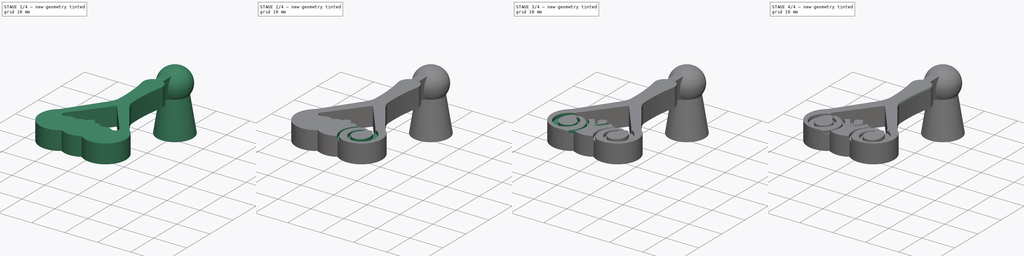
[diagram: build sequence overview — one tinted view per stage of 4, left to right]
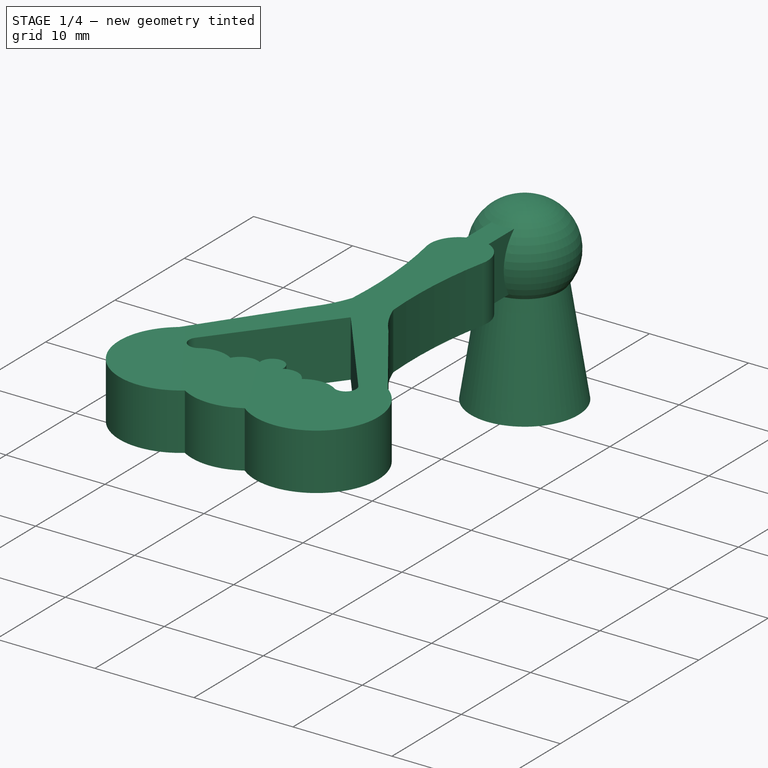
[diagram: stage 1 of 4 — iso view after this stage's code; geometry added in this stage tinted green]
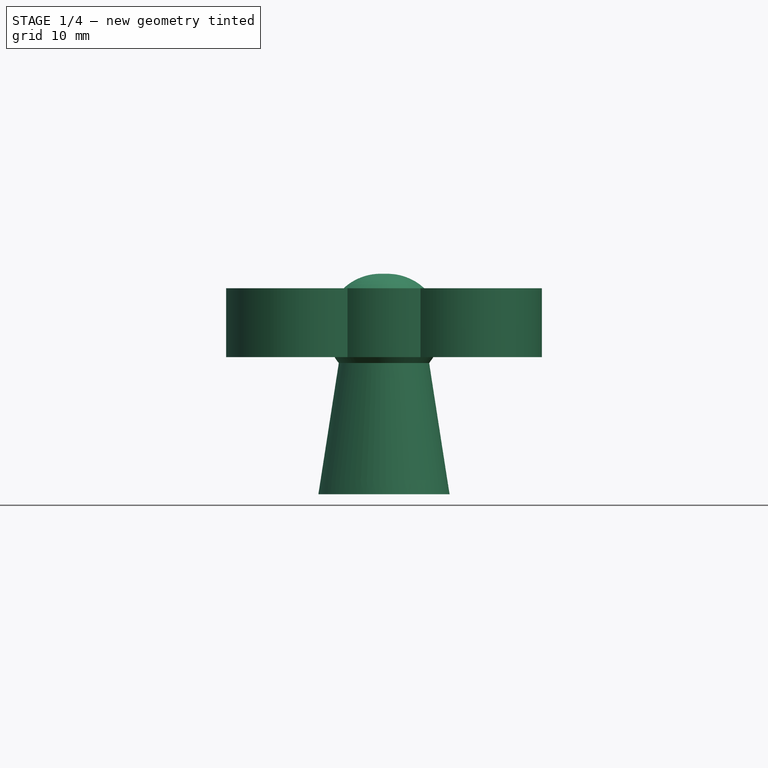
[diagram: stage 1 of 4 — front view after this stage's code; geometry added in this stage tinted green]
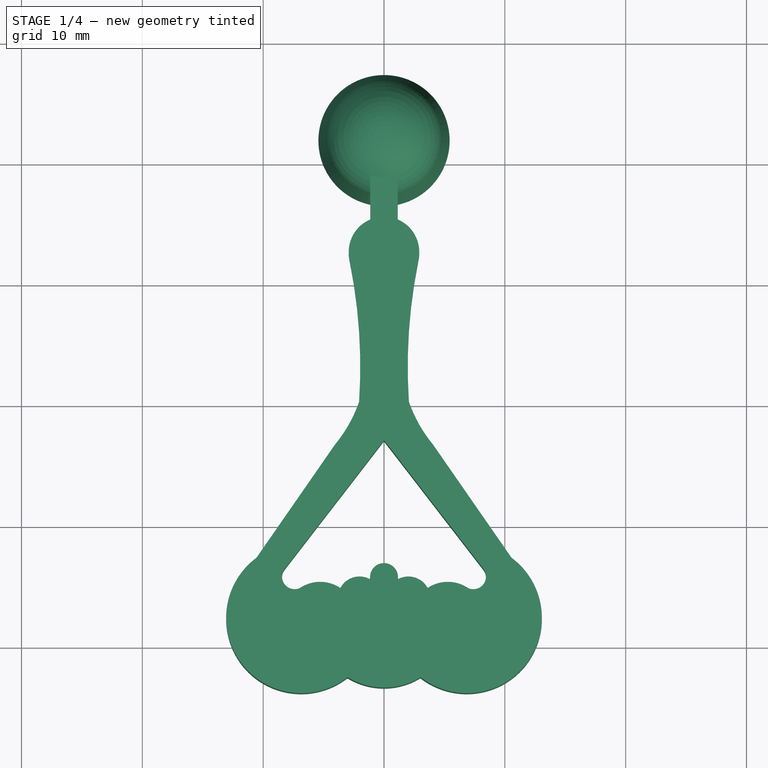
[diagram: stage 1 of 4 — top view after this stage's code; geometry added in this stage tinted green]
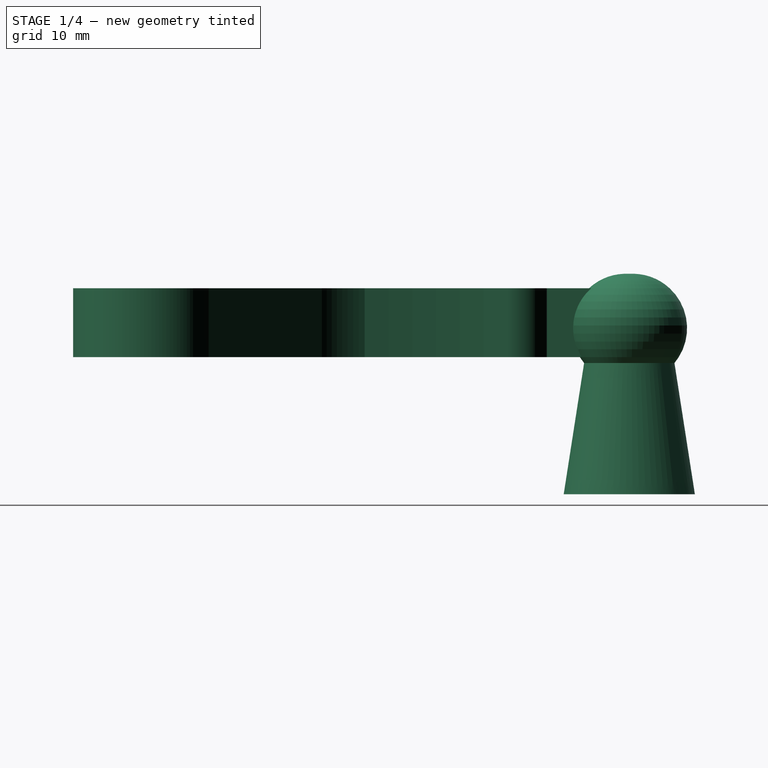
[diagram: stage 1 of 4 — right view after this stage's code; geometry added in this stage tinted green]
FCSTD DOCUMENT  (FreeCAD 1.1R20260325 (Git shallow))
Label: msf076
License: All rights reserved
LicenseURL: https://en.wikipedia.org/wiki/All_rights_reserved
objects: Sketcher::SketchObject×6, PartDesign::Pocket×3, PartDesign::Fillet×3, App::LinkGroup×2, App::Point×2, PartDesign::Pad×1, PartDesign::Revolution×1, PartDesign::Mirrored×1, PartDesign::MultiTransform×1, PartDesign::Body×1, App::Part×1
note: 41 computed .brp shape members not serialized (recipe doc carries the construction recipe); baked Part::Feature solids carry a one-line shape summary decoded from their .brp

FEATURE [Sketcher::SketchObject] Sketch
  ArcFitTolerance = 0
  ExternalTypes = [0]
  FullyConstrained = true
  MakeInternals = false
  MapMode = 5
  _ExternalGeoVersion = 0
  sketch-geometry (23):
    g0: ArcOfCircle CenterX=0 CenterY=-7.50755 CenterZ=0 NormalX=0 NormalY=0 NormalZ=1 AngleXU=0 Radius=2.91933 StartAngle=6.06481 EndAngle=7.45281
    g1: ArcOfCircle CenterX=46.2374 CenterY=-16.9612 CenterZ=0 NormalX=0 NormalY=0 NormalZ=1 AngleXU=0 Radius=44.275 StartAngle=2.94101 EndAngle=3.20802
    g2: ArcOfCircle CenterX=12.8513 CenterY=-16.1631 CenterZ=0 NormalX=0 NormalY=0 NormalZ=1 AngleXU=0 Radius=11.42 StartAngle=3.47496 EndAngle=3.83247
    g3: LineSegment StartX=4.05 StartY=-23.44 StartZ=0 EndX=10.5485 EndY=-32.81 EndZ=0
    g4: ArcOfCircle CenterX=6.85 CenterY=-37.81 CenterZ=0 NormalX=0 NormalY=0 NormalZ=1 AngleXU=0 Radius=6.21924 StartAngle=4.04895 EndAngle=7.21711
    g5: LineSegment StartX=1.14 StartY=-4.82 StartZ=0 EndX=1.14 EndY=2 EndZ=0
    g6: LineSegment StartX=1.14 StartY=2 StartZ=0 EndX=-1.14 EndY=2 EndZ=0
    g7: LineSegment StartX=0 StartY=-23.1 StartZ=0 EndX=8.21 EndY=-33.73 EndZ=0
    g8: ArcOfCircle CenterX=7.39702 CenterY=-34.38 CenterZ=0 NormalX=0 NormalY=0 NormalZ=1 AngleXU=0 Radius=1.04088 StartAngle=4.26849 EndAngle=6.95764
    g9: ArcOfCircle CenterX=5.28 CenterY=-37.81 CenterZ=0 NormalX=0 NormalY=0 NormalZ=1 AngleXU=0 Radius=2.99817 StartAngle=0.980019 EndAngle=2.16157
    g10: ArcOfCircle CenterX=2.02229 CenterY=-36.17 CenterZ=0 NormalX=0 NormalY=0 NormalZ=1 AngleXU=0 Radius=1.80093 StartAngle=0.491535 EndAngle=2.08278
    g11: ArcOfCircle CenterX=0 CenterY=-34.4145 CenterZ=0 NormalX=0 NormalY=0 NormalZ=1 AngleXU=0 Radius=1.155 StartAngle=6.12185 EndAngle=9.58612
    g12: ArcOfCircle CenterX=-2.02229 CenterY=-36.17 CenterZ=0 NormalX=0 NormalY=0 NormalZ=1 AngleXU=0 Radius=1.80093 StartAngle=1.05881 EndAngle=2.65006
    g13: ArcOfCircle CenterX=-5.28 CenterY=-37.81 CenterZ=0 NormalX=0 NormalY=0 NormalZ=1 AngleXU=0 Radius=2.99817 StartAngle=0.980019 EndAngle=2.16157
    g14: ArcOfCircle CenterX=-7.39702 CenterY=-34.38 CenterZ=0 NormalX=0 NormalY=0 NormalZ=1 AngleXU=0 Radius=1.04088 StartAngle=2.46714 EndAngle=5.15629
    g15: LineSegment StartX=-8.21 StartY=-33.73 StartZ=0 EndX=0 EndY=-23.1 EndZ=0
    g16: LineSegment StartX=-1.14 StartY=2 StartZ=0 EndX=-1.14 EndY=-4.82 EndZ=0
    g17: ArcOfCircle CenterX=0 CenterY=-7.50755 CenterZ=0 NormalX=0 NormalY=0 NormalZ=1 AngleXU=0 Radius=2.91933 StartAngle=1.97197 EndAngle=3.35997
    g18: ArcOfCircle CenterX=-12.8513 CenterY=-16.1631 CenterZ=0 NormalX=0 NormalY=0 NormalZ=1 AngleXU=0 Radius=11.42 StartAngle=5.59231 EndAngle=5.94982
    g19: LineSegment StartX=-4.05 StartY=-23.44 StartZ=0 EndX=-10.5485 EndY=-32.81 EndZ=0
    g20: ArcOfCircle CenterX=-6.85 CenterY=-37.81 CenterZ=0 NormalX=0 NormalY=0 NormalZ=1 AngleXU=0 Radius=6.21924 StartAngle=2.20767 EndAngle=5.37583
    g21: ArcOfCircle CenterX=1.1e-15 CenterY=-37.81 CenterZ=0 NormalX=0 NormalY=0 NormalZ=1 AngleXU=0 Radius=5.7559 StartAngle=4.16005 EndAngle=5.26473
    g22: ArcOfCircle CenterX=-46.2374 CenterY=-16.9612 CenterZ=0 NormalX=0 NormalY=0 NormalZ=1 AngleXU=0 Radius=44.275 StartAngle=6.21676 EndAngle=6.48376
  constraints (74):
    c: Coincident(g1,g0)
    c: Coincident(g2,g1)
    c: Coincident(g3,g2)
    c: Coincident(g4,g3)
    c: Coincident(g5,g0)
    c: Vertical(g5)
    c: Coincident(g6,g5)
    c: PointOnObject(g7,g-2)
    c: Coincident(g8,g7)
    c: Coincident(g9,g8)
    c: Coincident(g10,g9)
    c: Coincident(g11,g10)
    c: Coincident(g12,g11)
    c: Coincident(g13,g12)
    c: Coincident(g14,g13)
    c: Coincident(g15,g14)
    c: Coincident(g15,g7)
    c: Coincident(g16,g6)
    c: Vertical(g16)
    c: Coincident(g17,g16)
    c: Coincident(g19,g18)
    c: Coincident(g20,g19)
    c: Coincident(g21,g20)
    c: Coincident(g21,g4)
    c: Symmetric(g4,g20,g-2)
    c: Horizontal(g20,g13)
    c: Horizontal(g13,g21)
    c: Symmetric(g4,g20,g-2)
    c: Symmetric(g9,g13,g-2)
    c: Symmetric(g12,g10,g-2)
    c: Symmetric(g10,g11,g-2)
    c: Symmetric(g13,g8,g-2)
    c: Symmetric(g8,g14,g-2)
    c: Horizontal(g14,g7)
    c: Horizontal(g19,g3)
    c: Symmetric(g1,g18,g-2)
    c: Symmetric(g2,g18,g-2)
    c: PointOnObject(g17,g-2)
    c: Coincident(g0,g17)
    c: Horizontal(g0,g16)
    c: Horizontal(g0,g17)
    c: Symmetric(g5,g6,g-2)
    c: DistanceY(g5,g5) = 6.82
    c: DistanceY(g-1,g5) = 2
    c: DistanceY(g0,g-1) = 8.14
    c: DistanceY(g1,g-1) = 19.9
    c: DistanceY(g2,g-1) = 23.44
    c: DistanceY(g3,g-1) = 32.81
    c: DistanceY(g4,g-1) = 42.71
    c: DistanceY(g20,g-1) = 37.81
    c: DistanceY(g12,g-1) = 36.17
    c: DistanceY(g11,g-1) = 34.6
    c: Horizontal(g12,g13)
    c: DistanceY(g13,g14) = 0.94
    c: DistanceY(g14,g14) = 0.65
    c: DistanceY(g14,g19) = 0.92
    c: DistanceY(g19,g7) = 9.71
    c: DistanceX(g-1,g9) = 5.28
    c: DistanceX(g9,g4) = 1.57
    c: DistanceX(g-1,g8) = 6.95
    c: DistanceX(g10,g9) = 2.47
    c: DistanceX(g-1,g4) = 3.02
    c: DistanceX(g14,g13) = 1.26
    c: Diameter(g11) = 2.31
    c: DistanceX(g18,g7) = 4.05
    c: DistanceX(g18,g-1) = 2.06
    c: Equal(g18,g2)
    c: Diameter(g2) = 22.84
    c: Coincident(g22,g17)
    c: Coincident(g22,g18)
    c: Equal(g1,g22)
    c: Diameter(g1) = 88.55
    c: DistanceX(g0,g0) = 2.85
    c: DistanceX(g-1,g0) = 1.14
FEATURE [PartDesign::Pad] Pad
  Direction = (0,0,1)
  Length = 5.7
  Length2 = 10
  Profile = -> Sketch
  ReferenceAxis = -> Sketch [N_Axis]
  SideType = 0
  Suppressed = false
  Type = 0
  Type2 = 0
FEATURE [Sketcher::SketchObject] Sketch001
  ArcFitTolerance = 0
  AttachmentOffset = pos=(2,3,-1.15) rot=(0,0,1;0rad)
  ExternalTypes = [0]
  FullyConstrained = true
  MakeInternals = false
  MapMode = 5
  Placement = pos=(-0.01,2,3) rot=(0.57735,0.57735,0.57735;2.0944rad)
  _ExternalGeoVersion = 0
FEATURE [Sketcher::SketchObject] Sketch002
  ArcFitTolerance = 0
  ExternalTypes = [0]
  FullyConstrained = true
  MakeInternals = false
  MapMode = 5
  Placement = pos=(0,2,0) rot=(0,0.707107,0.707107;3.14159rad)
  _ExternalGeoVersion = 0
  sketch-geometry (4):
    g0: ArcOfCircle CenterX=0.278835 CenterY=2.39364 CenterZ=0 NormalX=0 NormalY=0 NormalZ=1 AngleXU=0 Radius=4.505 StartAngle=5.58856 EndAngle=7.91592
    g1: LineSegment StartX=3.74 StartY=-0.49 StartZ=0 EndX=5.43 EndY=-11.35 EndZ=0
    g2: LineSegment StartX=5.43 StartY=-11.35 StartZ=0 EndX=1.51e-14 EndY=-11.35 EndZ=0
    g3: LineSegment StartX=1.51e-14 StartY=-11.35 StartZ=0 EndX=1.51e-14 EndY=6.89 EndZ=0
  constraints (13):
    c: PointOnObject(g0,g-2)
    c: Coincident(g1,g0)
    c: Coincident(g2,g1)
    c: Horizontal(g2)
    c: Coincident(g3,g2)
    c: Coincident(g3,g0)
    c: Vertical(g3)
    c: DistanceX(g2,g2) = 5.43
    c: DistanceY(g3,g3) = 18.24
    c: DistanceY(g1,g1) = 10.86
    c: Diameter(g0) = 9.01
    c: DistanceY(g0,g-1) = 0.49
    c: DistanceX(g-1,g0) = 3.74
FEATURE [PartDesign::Revolution] Revolution
  Angle = 360
  Angle2 = 0
  Axis = (-1e-16,2e-16,1)
  Base = (0,2,0)
  BaseFeature = -> Pad
  FuseOrder = 0
  Profile = -> Sketch002
  ReferenceAxis = -> Sketch002 [V_Axis]
  Reversed = true
  Suppressed = false
  Type = 0
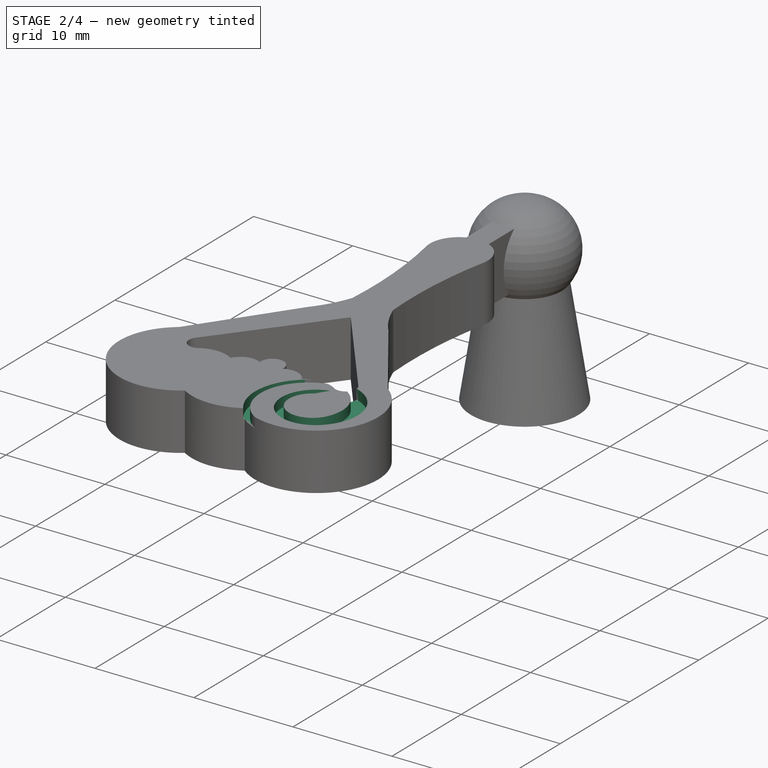
[diagram: stage 2 of 4 — iso view after this stage's code; geometry added in this stage tinted green]
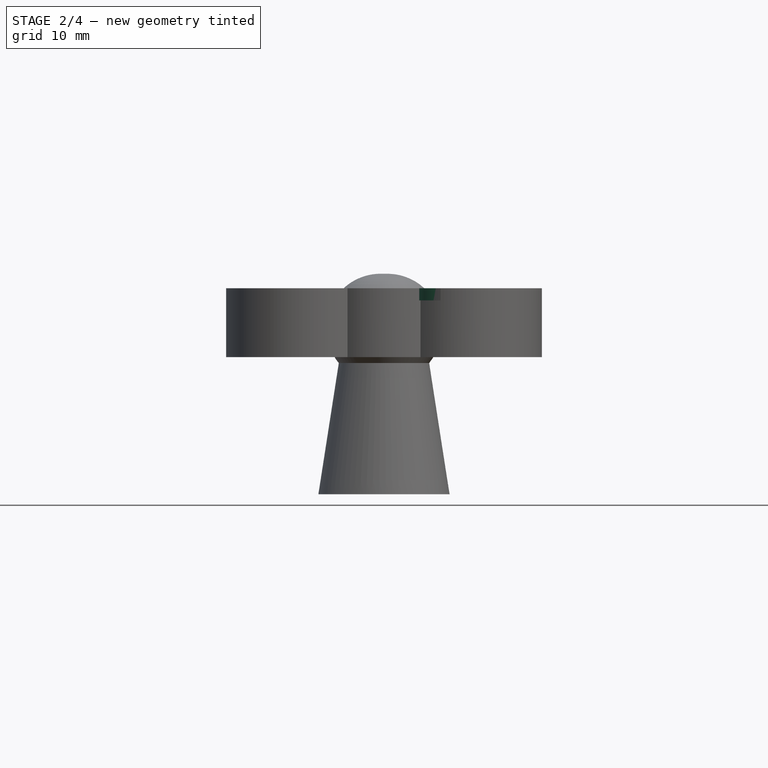
[diagram: stage 2 of 4 — front view after this stage's code; geometry added in this stage tinted green]
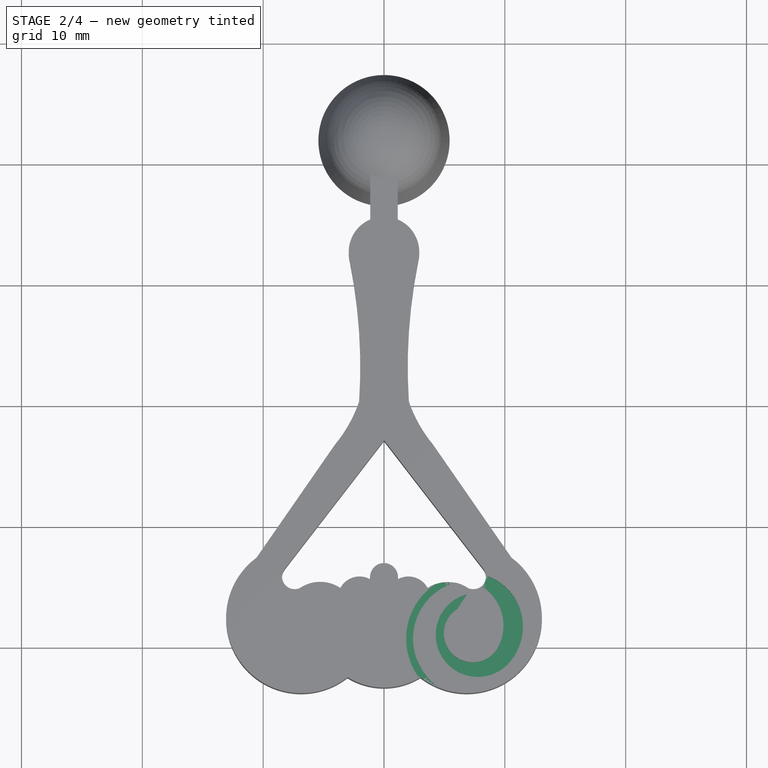
[diagram: stage 2 of 4 — top view after this stage's code; geometry added in this stage tinted green]
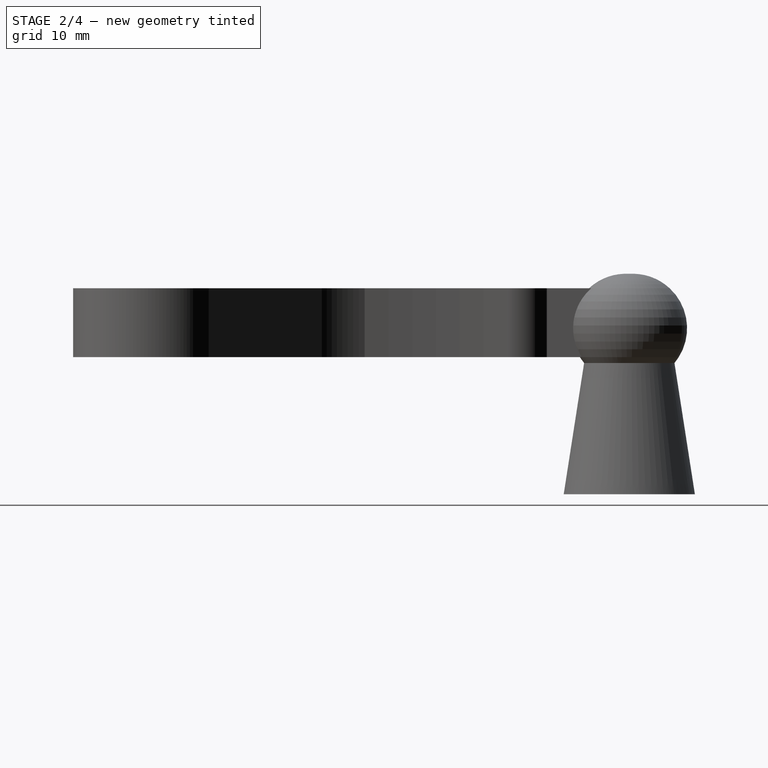
[diagram: stage 2 of 4 — right view after this stage's code; geometry added in this stage tinted green]
FEATURE [Sketcher::SketchObject] Sketch003
  ArcFitTolerance = 0
  ExternalTypes = [0]
  FullyConstrained = false
  MakeInternals = false
  MapMode = 5
  Placement = pos=(0,0,5.7) rot=(0,0,1;0rad)
  _ExternalGeoVersion = 0
  sketch-geometry (6):
    g0: ArcOfCircle CenterX=7.03152 CenterY=-38.5272 CenterZ=0 NormalX=0 NormalY=0 NormalZ=1 AngleXU=0 Radius=4.46407 StartAngle=5.44972 EndAngle=7.53175
    g1: ArcOfCircle CenterX=7.75659 CenterY=-39.2101 CenterZ=0 NormalX=0 NormalY=0 NormalZ=1 AngleXU=0 Radius=3.47196 StartAngle=1.83232 EndAngle=5.42735
    g2: ArcOfCircle CenterX=6.03807 CenterY=-38.4441 CenterZ=0 NormalX=0 NormalY=0 NormalZ=1 AngleXU=0 Radius=3.85084 StartAngle=5.82623 EndAngle=7.29553
    g3: ArcOfCircle CenterX=7.34738 CenterY=-39.0821 CenterZ=0 NormalX=0 NormalY=0 NormalZ=1 AngleXU=0 Radius=2.39437 StartAngle=2.12956 EndAngle=5.82408
    g4: LineSegment StartX=6.85892 StartY=-35.8562 StartZ=0 EndX=6.07802 EndY=-37.0519 EndZ=0
    g5: LineSegment StartX=8.07854 StartY=-35.1783 StartZ=0 EndX=8.44523 EndY=-34.2929 EndZ=0
  constraints (6):
    c: Coincident(g1,g0)
    c: Coincident(g3,g2)
    c: Coincident(g4,g1)
    c: Coincident(g4,g3)
    c: Coincident(g5,g2)
    c: Coincident(g5,g0)
FEATURE [PartDesign::Pocket] Pocket
  BaseFeature = -> Revolution
  Direction = (0,0,-1)
  Length = 1
  Length2 = 5
  Profile = -> Sketch003
  ReferenceAxis = -> Sketch003 [N_Axis]
  SideType = 0
  Suppressed = false
  Type = 0
  Type2 = 0
FEATURE [Sketcher::SketchObject] Sketch004
  ArcFitTolerance = 0
  ExternalTypes = [0]
  FullyConstrained = false
  MakeInternals = false
  MapMode = 5
  Placement = pos=(0,0,5.7) rot=(0,0,1;0rad)
  _ExternalGeoVersion = 0
  sketch-geometry (4):
    g0: ArcOfCircle CenterX=7.24871 CenterY=-39.5273 CenterZ=0 NormalX=0 NormalY=0 NormalZ=1 AngleXU=0 Radius=4.84686 StartAngle=1.47966 EndAngle=4.57243
    g1: ArcOfCircle CenterX=7.24871 CenterY=-39.5273 CenterZ=0 NormalX=0 NormalY=0 NormalZ=1 AngleXU=0 Radius=5.41269 StartAngle=1.63374 EndAngle=4.35305
    g2: LineSegment StartX=6.90824 StartY=-34.1253 StartZ=0 EndX=7.6898 EndY=-34.7006 EndZ=0
    g3: LineSegment StartX=5.34529 StartY=-44.5943 StartZ=0 EndX=6.57257 EndY=-44.3268 EndZ=0
  constraints (5):
    c: Coincident(g2,g1)
    c: Coincident(g2,g0)
    c: Coincident(g3,g1)
    c: Coincident(g3,g0)
    c: Coincident(g0,g1)
FEATURE [PartDesign::Pocket] Pocket001
  BaseFeature = -> Pocket
  Direction = (0,0,-1)
  Length = 1
  Length2 = 5
  Profile = -> Sketch004
  ReferenceAxis = -> Sketch004 [N_Axis]
  SideType = 0
  Suppressed = false
  Type = 0
  Type2 = 0
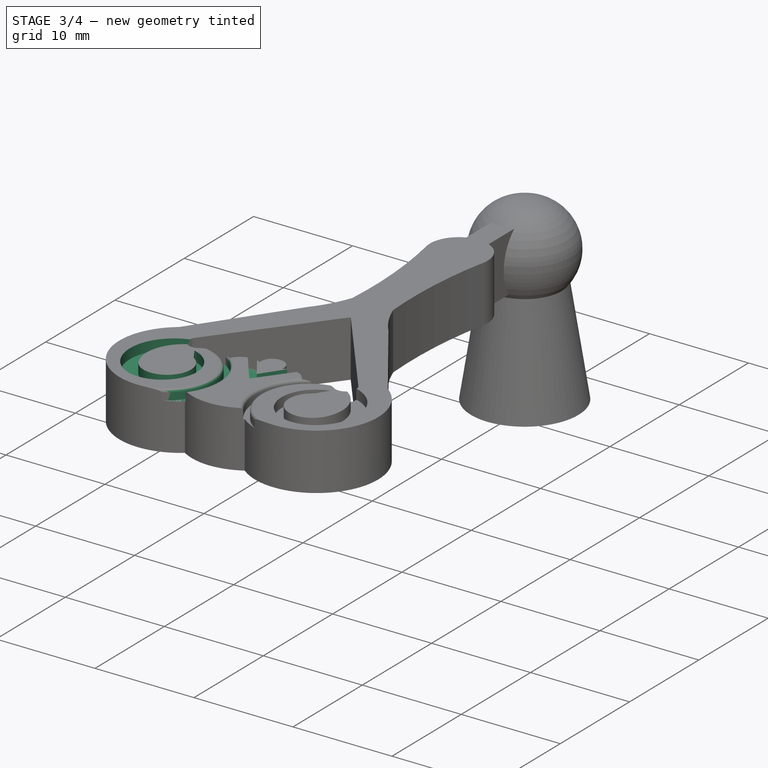
[diagram: stage 3 of 4 — iso view after this stage's code; geometry added in this stage tinted green]
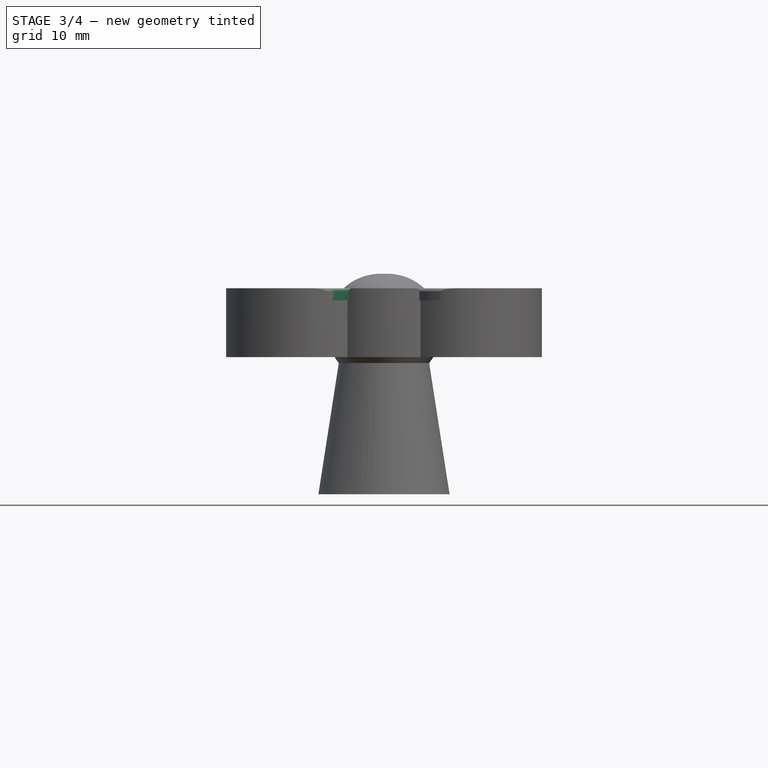
[diagram: stage 3 of 4 — front view after this stage's code; geometry added in this stage tinted green]
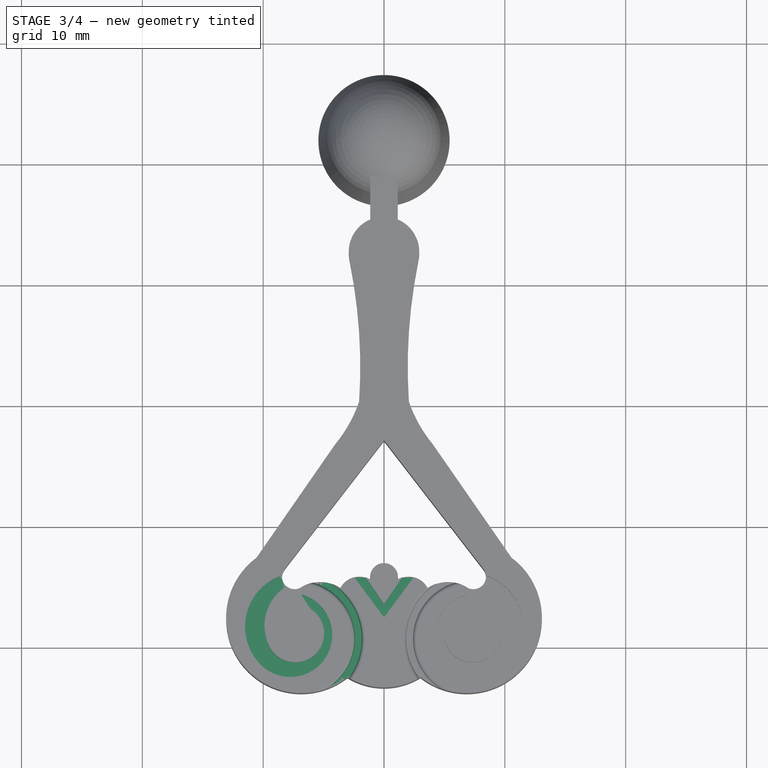
[diagram: stage 3 of 4 — top view after this stage's code; geometry added in this stage tinted green]
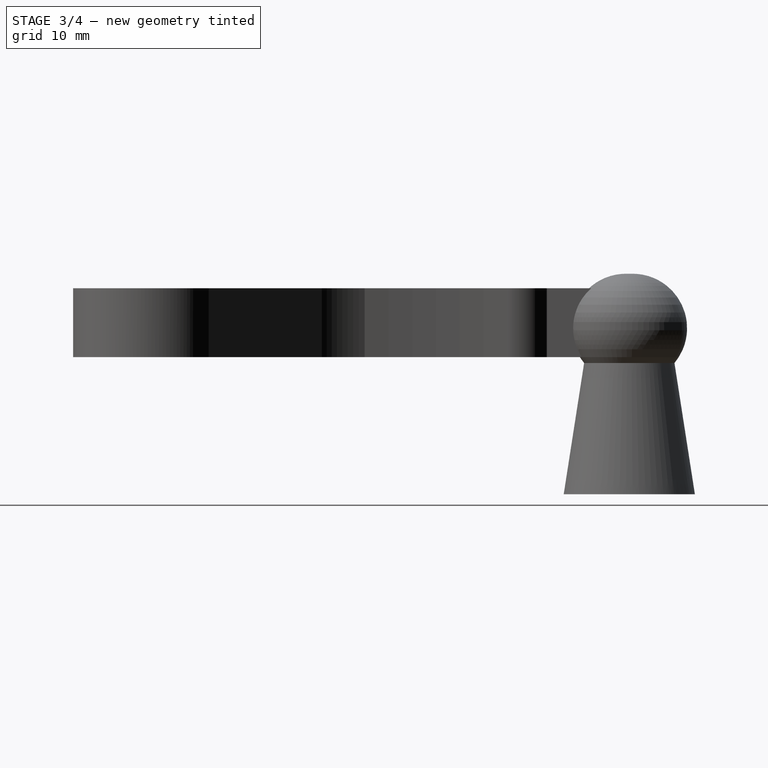
[diagram: stage 3 of 4 — right view after this stage's code; geometry added in this stage tinted green]
FEATURE [Sketcher::SketchObject] Sketch005
  ArcFitTolerance = 0
  ExternalTypes = [0]
  FullyConstrained = false
  MakeInternals = false
  MapMode = 5
  Placement = pos=(0,0,5.7) rot=(0,0,1;0rad)
  _ExternalGeoVersion = 0
  sketch-geometry (4):
    g0: LineSegment StartX=2.85849 StartY=-33.9038 StartZ=0 EndX=0 EndY=-37.7405 EndZ=0
    g1: LineSegment StartX=2.85849 StartY=-33.9038 StartZ=0 EndX=2.0192 EndY=-33.7239 EndZ=0
    g2: LineSegment StartX=2.0192 StartY=-33.7239 StartZ=0 EndX=0 EndY=-36.6614 EndZ=0
    g3: LineSegment StartX=0 StartY=-36.6614 StartZ=0 EndX=0 EndY=-37.7405 EndZ=0
  constraints (6):
    c: PointOnObject(g0,g-2)
    c: Coincident(g1,g0)
    c: Coincident(g2,g1)
    c: PointOnObject(g2,g-2)
    c: Coincident(g3,g2)
    c: Coincident(g3,g0)
FEATURE [PartDesign::Pocket] Pocket002
  BaseFeature = -> Pocket001
  Direction = (0,0,-1)
  Length = 1
  Length2 = 5
  Profile = -> Sketch005
  ReferenceAxis = -> Sketch005 [N_Axis]
  SideType = 0
  Suppressed = false
  Type = 0
  Type2 = 0
FEATURE [PartDesign::Mirrored] Mirrored
  MirrorPlane = -> YZ_Plane001
  Suppressed = false
  TransformMode = 0
FEATURE [PartDesign::MultiTransform] MultiTransform
  BaseFeature = -> Pocket002
  Originals = -> [Pocket,Pocket001,Pocket002]
  Suppressed = false
  TransformMode = 0
  Transformations = -> [Mirrored]
FEATURE [PartDesign::Fillet] Fillet
  Base = -> MultiTransform [Edge66,Edge43,Edge151,Edge154]
  BaseFeature = -> MultiTransform
  Radius = 0.3
  SupportTransform = false
  Suppressed = false
  UseAllEdges = false
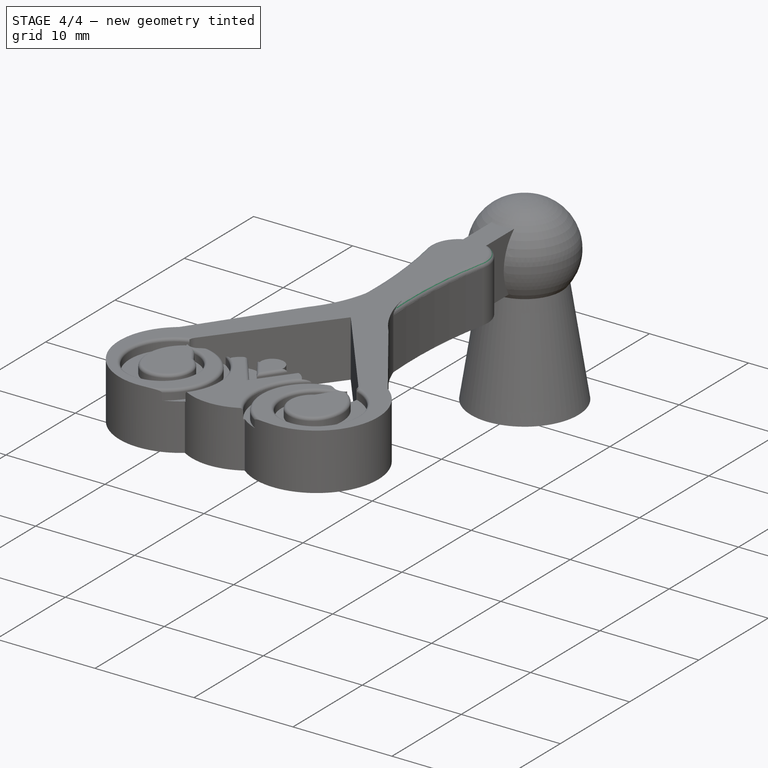
[diagram: stage 4 of 4 — iso view after this stage's code; geometry added in this stage tinted green]
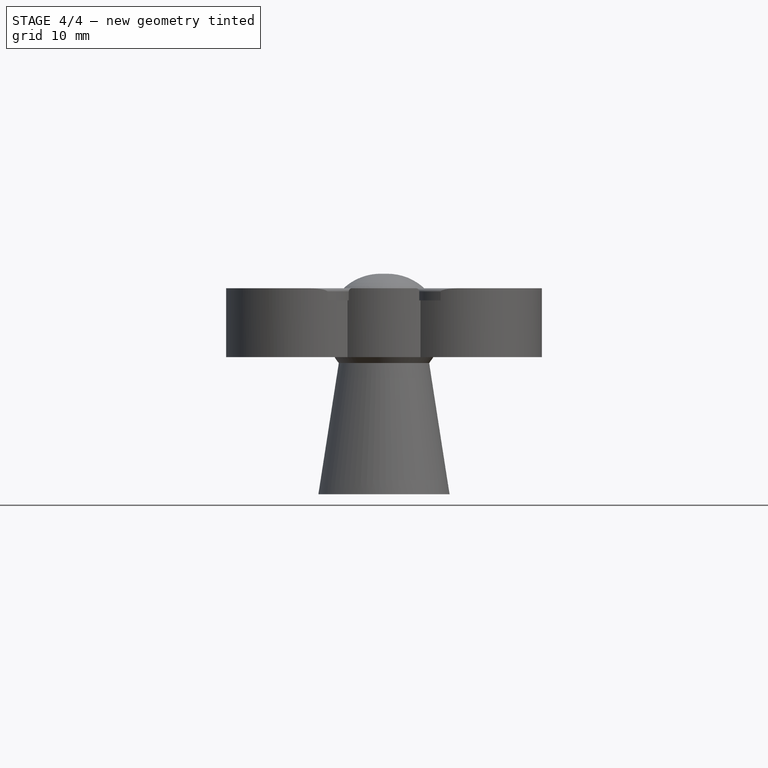
[diagram: stage 4 of 4 — front view after this stage's code; geometry added in this stage tinted green]
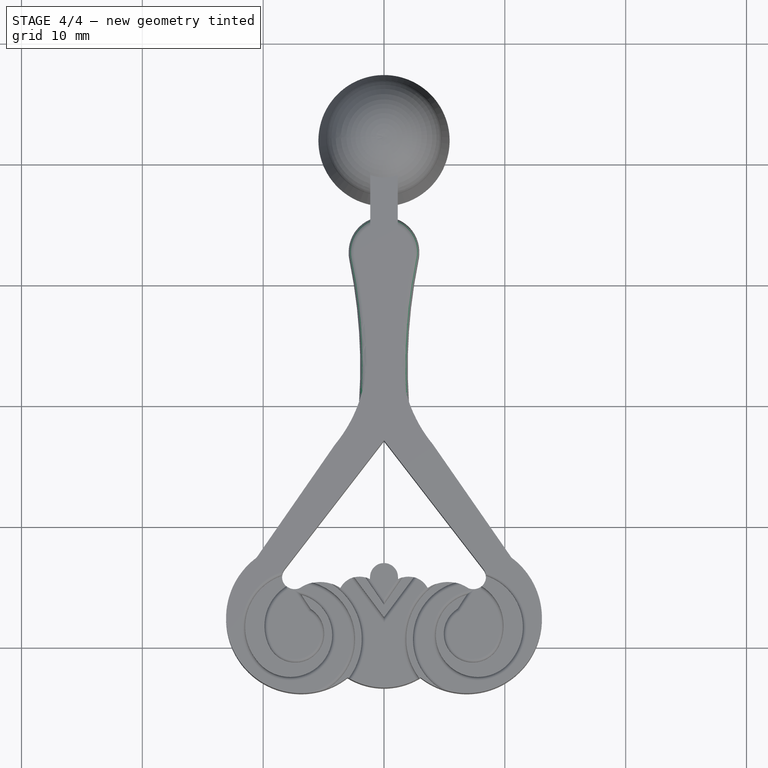
[diagram: stage 4 of 4 — top view after this stage's code; geometry added in this stage tinted green]
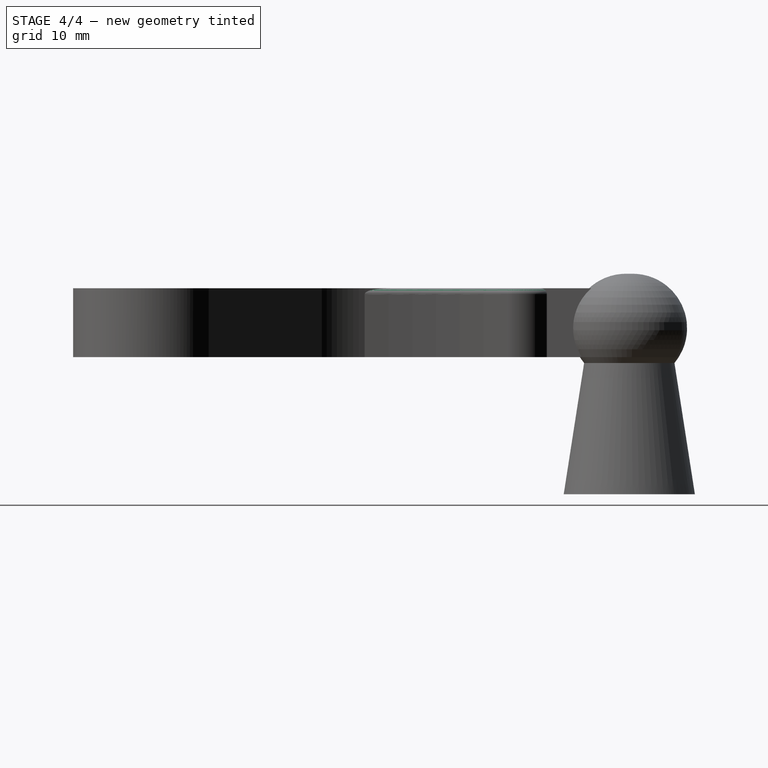
[diagram: stage 4 of 4 — right view after this stage's code; geometry added in this stage tinted green]
FEATURE [PartDesign::Fillet] Fillet001
  Base = -> Fillet [Edge47,Edge31,Edge29,Edge27,Edge33,Edge25,Edge49,Edge50,Edge48,Edge45,Edge152,Edge153,Edge174,Edge176]
  BaseFeature = -> Fillet
  Radius = 0.3
  SupportTransform = false
  Suppressed = false
  UseAllEdges = false
FEATURE [PartDesign::Fillet] Fillet002
  Base = -> Fillet001 [Edge29,Edge41]
  BaseFeature = -> Fillet001
  Radius = 0.5
  SupportTransform = false
  Suppressed = false
  UseAllEdges = false
FEATURE [PartDesign::Body] Body
  AllowCompound = true
  Group = -> [Sketch,Pad,Sketch001,Sketch002,Revolution,Sketch003,Pocket,Sketch004,Pocket001,Sketch005,Pocket002,MultiTransform,Mirrored,Fillet,Fillet001,Fillet002]
  Origin = -> Origin001
  Placement = pos=(0,-2,11.35) rot=(0,0,1;0rad)
  Tip = -> Fillet002
FEATURE [App::Part] Part
  Group = -> [Body]
  Origin = -> Origin
FEATURE [App::LinkGroup] LinkGroup  label="Handle, link this"
  ElementList = -> [Part]
  LinkMode = 0
FEATURE [App::LinkGroup] LinkGroup001  label="Handle, hide this"
  ElementList = -> [LinkGroup]
  LinkMode = 0
FEATURE [App::Point] Origin002  label="Origin"
  Role = Origin
FEATURE [App::Point] Origin003  label="Origin"
  Role = Origin
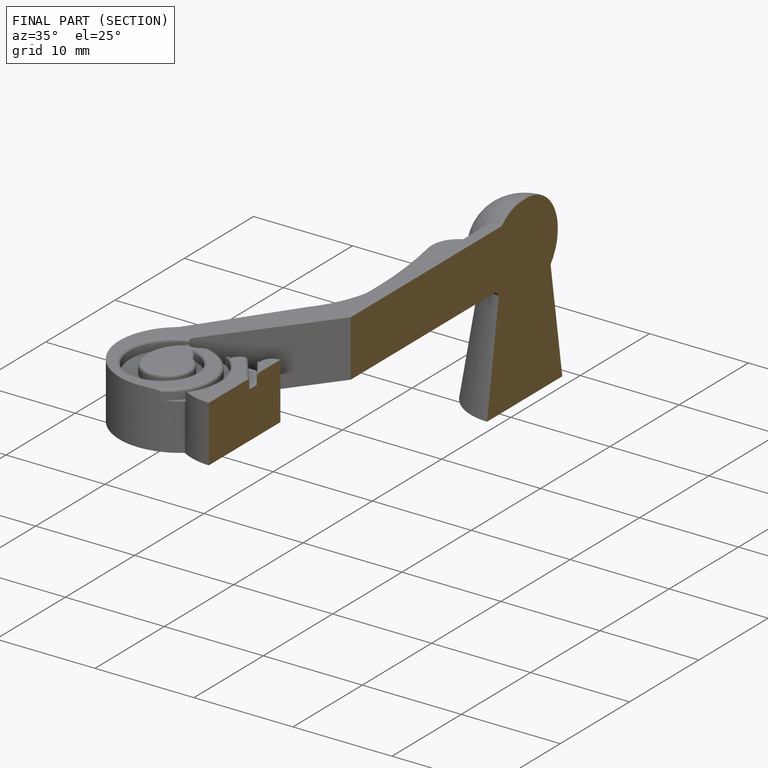
[diagram: finished part — half-section view (interior)]
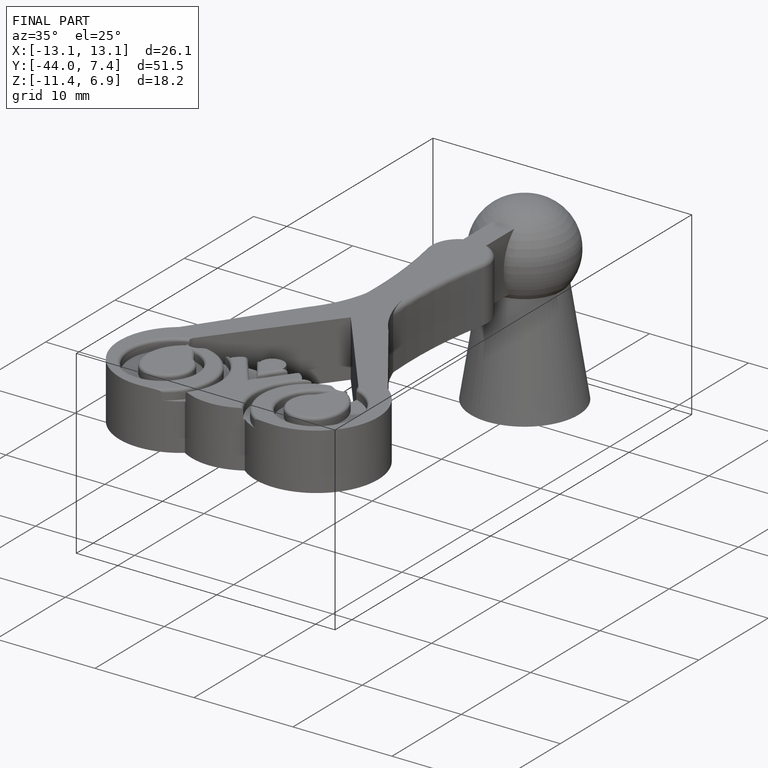
[diagram: finished part — iso view with bounding-box wireframe]
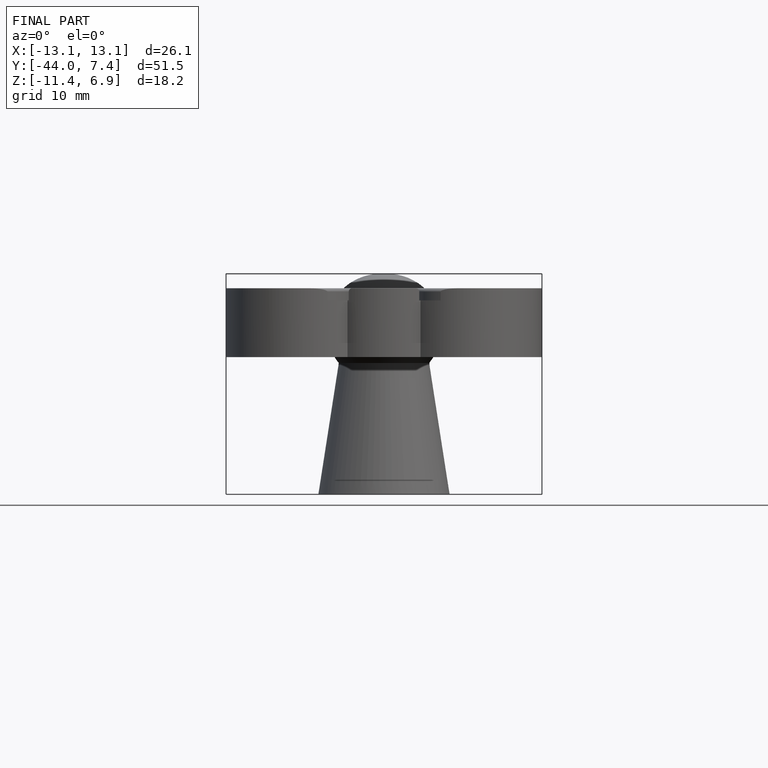
[diagram: finished part — front view with bounding-box wireframe]
